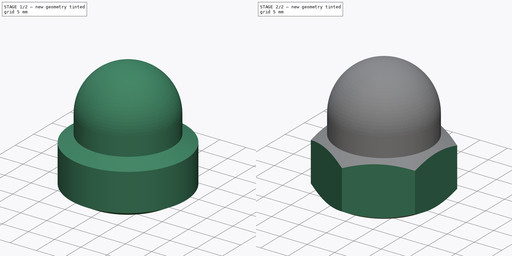
[diagram: build sequence overview — one tinted view per stage of 2, left to right]
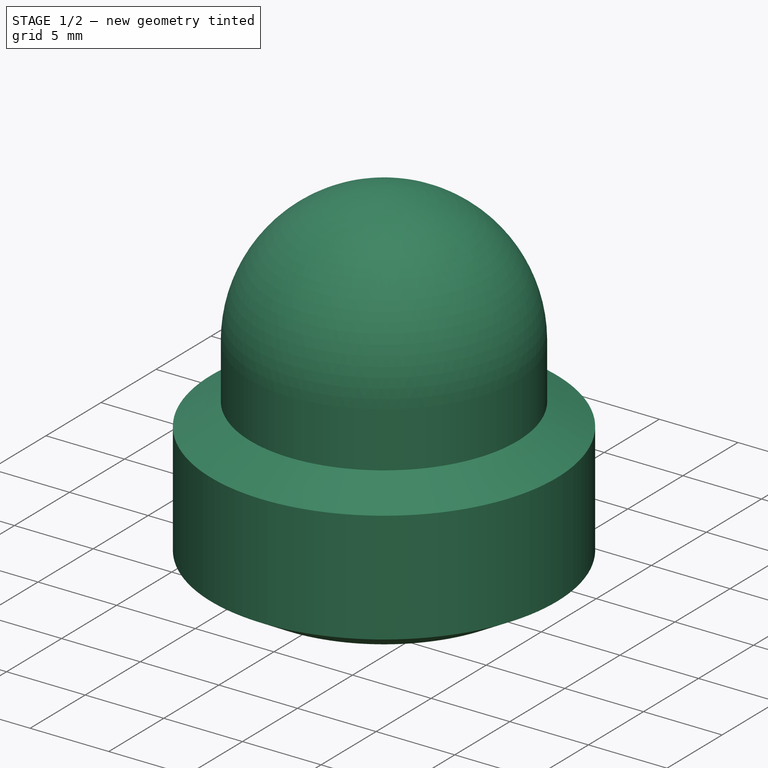
[diagram: stage 1 of 2 — iso view after this stage's code; geometry added in this stage tinted green]
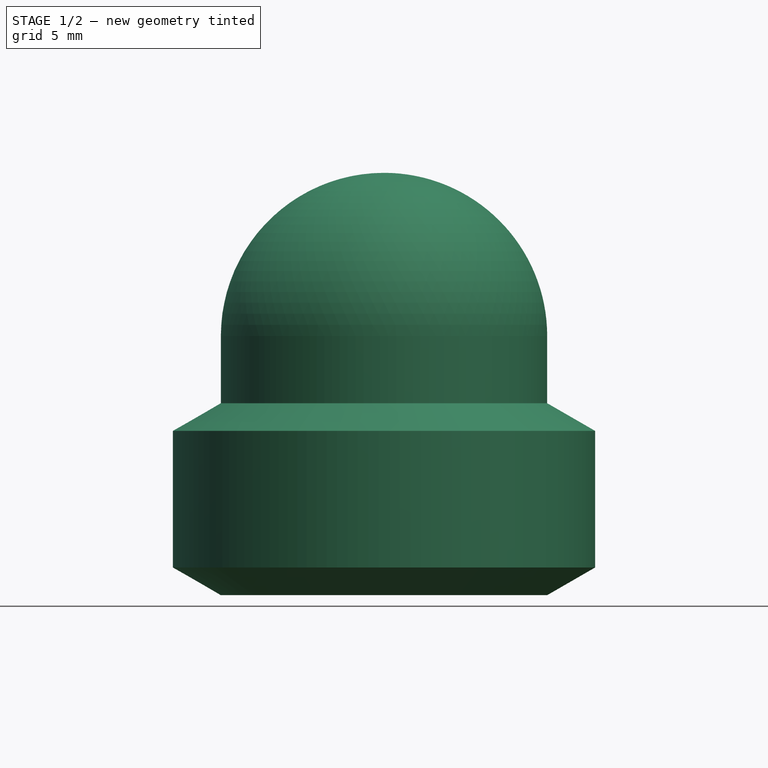
[diagram: stage 1 of 2 — front view after this stage's code; geometry added in this stage tinted green]
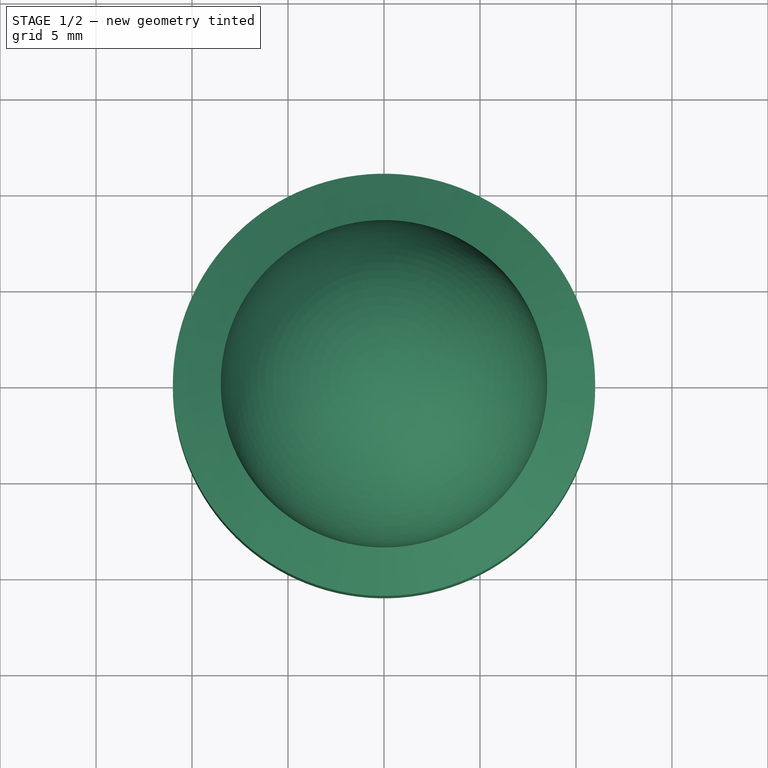
[diagram: stage 1 of 2 — top view after this stage's code; geometry added in this stage tinted green]
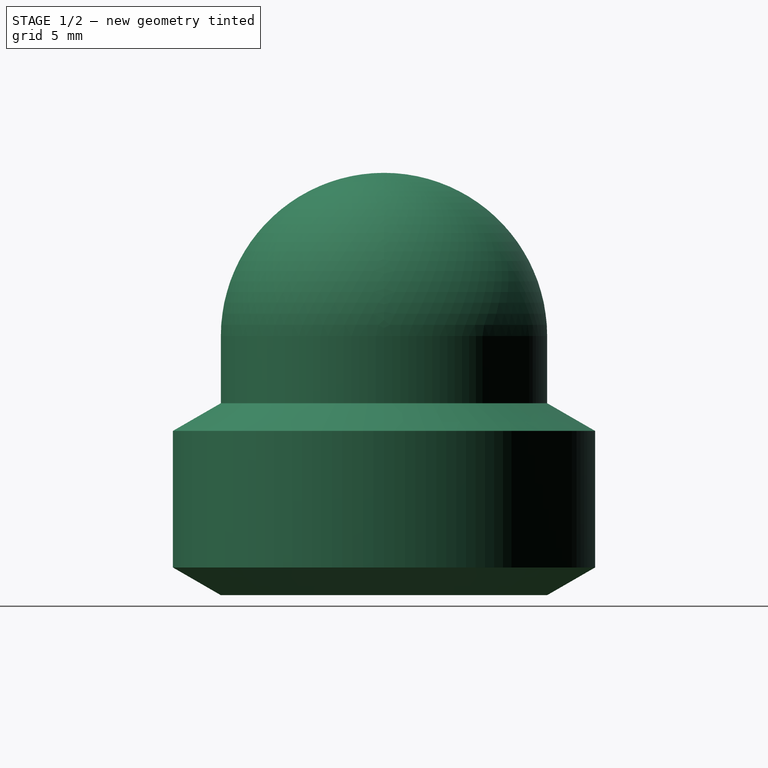
[diagram: stage 1 of 2 — right view after this stage's code; geometry added in this stage tinted green]
FCSTD DOCUMENT  (FreeCAD 0.14R3700 (Git))
Label: Hutmutter_DIN_1587-M12
License: CC-BY 3.0
LicenseURL: http://creativecommons.org/licenses/by/3.0/
objects: Sketcher::SketchObject×2, PartDesign::Revolution×1, PartDesign::Pocket×1, Part::Feature×1
note: 7 computed .brp shape members not serialized (recipe doc carries the construction recipe); baked Part::Feature solids carry a one-line shape summary decoded from their .brp

FEATURE [Sketcher::SketchObject] Sketch
  Placement = pos=(0,0,0) rot=(1,0,0;1.5708rad)
  sketch-geometry (9):
    g0: LineSegment StartX=5.1 StartY=0 StartZ=0 EndX=8.5 EndY=0 EndZ=0
    g1: LineSegment StartX=8.5 StartY=0 StartZ=0 EndX=11 EndY=1.44338 EndZ=0
    g2: LineSegment StartX=11 StartY=1.44338 StartZ=0 EndX=11 EndY=8.55662 EndZ=0
    g3: LineSegment StartX=11 StartY=8.55662 StartZ=0 EndX=8.5 EndY=10 EndZ=0
    g4: LineSegment StartX=8.5 StartY=10 StartZ=0 EndX=8.5 EndY=13.5 EndZ=0
    g5: ArcOfCircle CenterX=0 CenterY=13.5 CenterZ=0 NormalX=0 NormalY=0 NormalZ=1 Radius=8.5 StartAngle=0 EndAngle=1.5708
    g6: LineSegment StartX=0 StartY=22 StartZ=0 EndX=0 EndY=12.8 EndZ=0
    g7: LineSegment StartX=0 StartY=12.8 StartZ=0 EndX=5.1 EndY=12.8 EndZ=0
    g8: LineSegment StartX=5.1 StartY=12.8 StartZ=0 EndX=5.1 EndY=0 EndZ=0
  constraints (27):
    c: PointOnObject(g0,g-1)
    c: Horizontal(g0)
    c: Coincident(g0,g1)
    c: Coincident(g1,g2)
    c: Vertical(g2)
    c: Coincident(g2,g3)
    c: Coincident(g3,g4)
    c: Vertical(g4)
    c: Tangent(g4,g5)
    c: Coincident(g5,g6)
    c: Vertical(g6)
    c: Coincident(g6,g7)
    c: Horizontal(g7)
    c: Coincident(g7,g8)
    c: Vertical(g8)
    c: Coincident(g0,g8)
    c: PointOnObject(g6,g-2)
    c: PointOnObject(g5,g6)
    c: Equal(g1,g3)
    c: Radius(g5) = 8.5
    c: DistanceY(g8) = -12.8
    c: DistanceX(g-1,g0) = 5.1
    c: Angle(g1,g0) = 2.61799
    c: DistanceX(g-1,g1) = 11
    c: Angle(g3,g4) = 2.0944
    c: DistanceY(g3,g0) = -10
    c: DistanceY(g-1,g5) = 22
FEATURE [PartDesign::Revolution] Revolution
  Angle = 360
  Axis = (0,0,1)
  Base = (0,0,0)
  Placement = pos=(0,0,0) rot=(1,0,0;1.5708rad)
  ReferenceAxis = -> Sketch [V_Axis]
  Reversed = true
  Sketch = -> Sketch
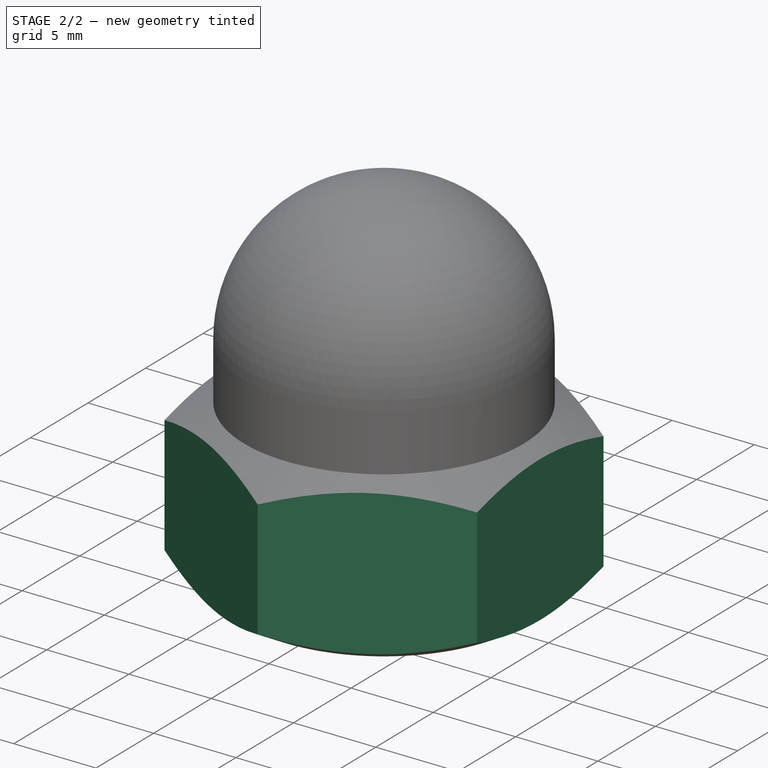
[diagram: stage 2 of 2 — iso view after this stage's code; geometry added in this stage tinted green]
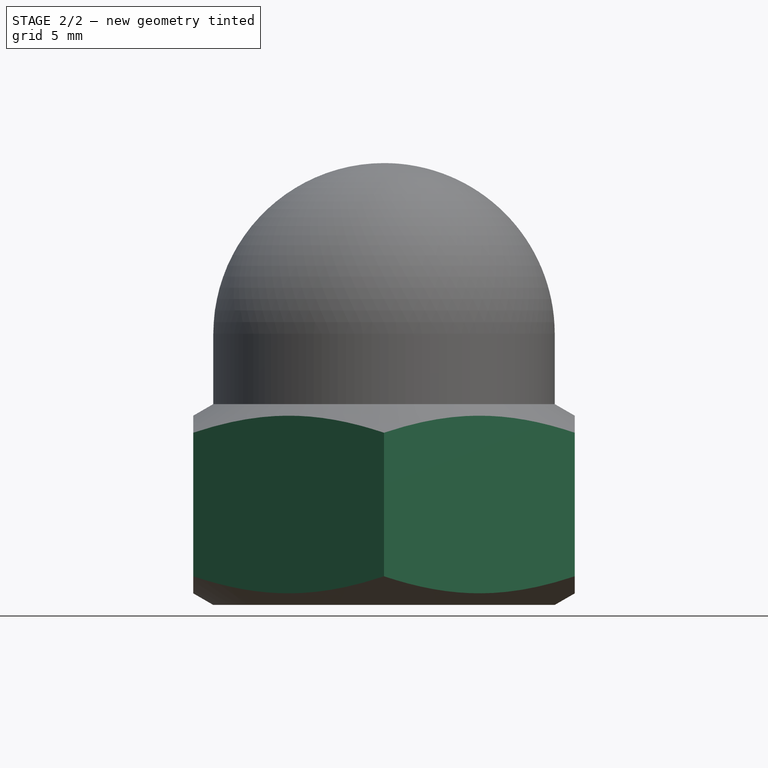
[diagram: stage 2 of 2 — front view after this stage's code; geometry added in this stage tinted green]
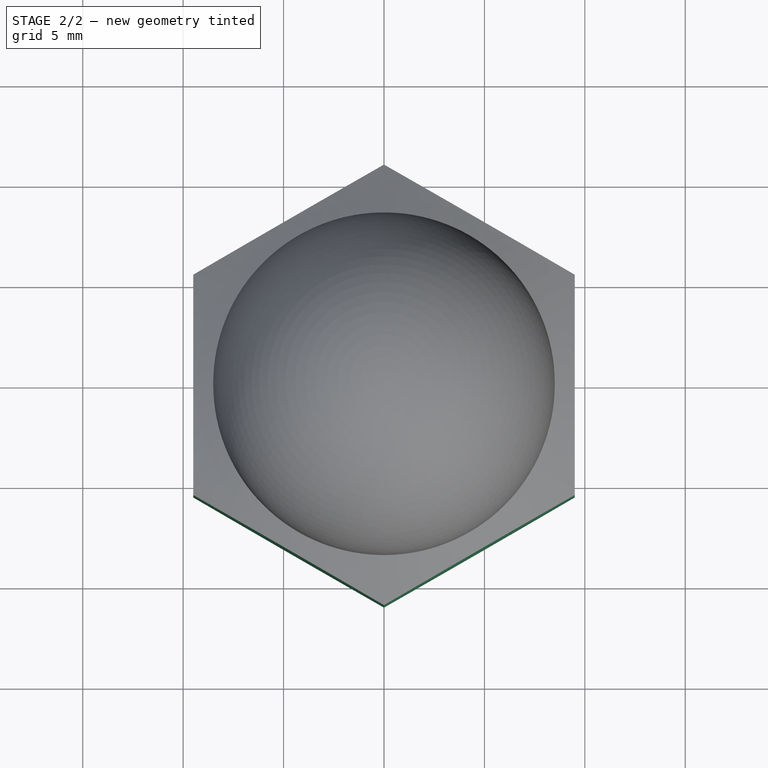
[diagram: stage 2 of 2 — top view after this stage's code; geometry added in this stage tinted green]
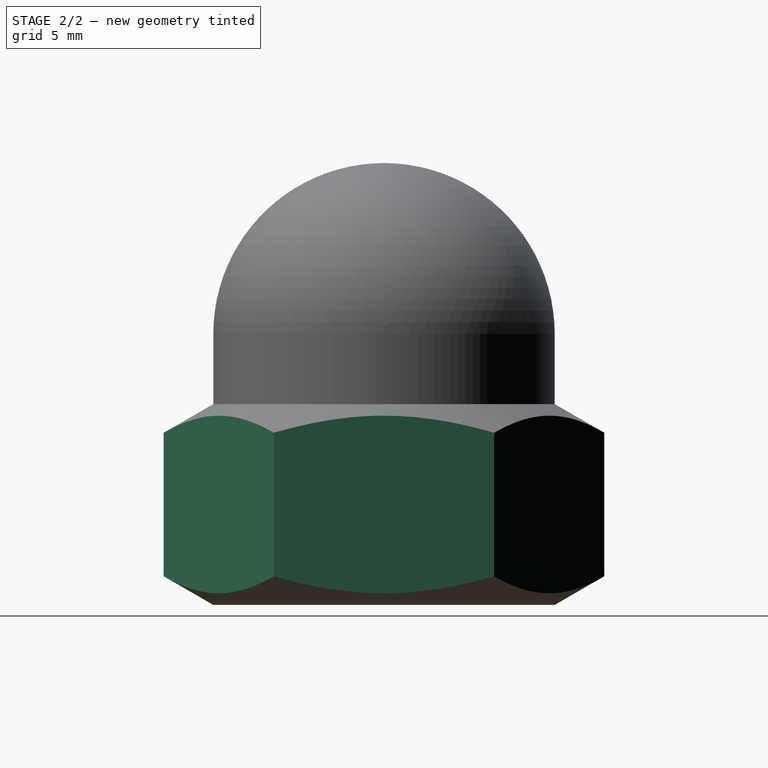
[diagram: stage 2 of 2 — right view after this stage's code; geometry added in this stage tinted green]
FEATURE [Sketcher::SketchObject] Sketch001
  Placement = pos=(0,0,0) rot=(1,0,0;3.14159rad)
  Support = -> Revolution [Face1]
  sketch-geometry (7):
    g0: LineSegment StartX=-9.5 StartY=5.48483 StartZ=0 EndX=-9.5 EndY=-5.48483 EndZ=0
    g1: LineSegment StartX=-9.5 StartY=-5.48483 StartZ=0 EndX=0 EndY=-10.9697 EndZ=0
    g2: LineSegment StartX=0 StartY=-10.9697 StartZ=0 EndX=9.5 EndY=-5.48483 EndZ=0
    g3: LineSegment StartX=9.5 StartY=-5.48483 StartZ=0 EndX=9.5 EndY=5.48483 EndZ=0
    g4: LineSegment StartX=9.5 StartY=5.48483 StartZ=0 EndX=0 EndY=10.9697 EndZ=0
    g5: LineSegment StartX=0 StartY=10.9697 StartZ=0 EndX=-9.5 EndY=5.48483 EndZ=0
    g6: Circle CenterX=0 CenterY=0 CenterZ=0 NormalX=0 NormalY=0 NormalZ=1 Radius=11
  constraints (20):
    c: Vertical(g0)
    c: Coincident(g0,g1)
    c: Coincident(g1,g2)
    c: Coincident(g2,g3)
    c: Vertical(g3)
    c: Coincident(g3,g4)
    c: PointOnObject(g4,g-2)
    c: Coincident(g4,g5)
    c: Coincident(g5,g0)
    c: PointOnObject(g1,g-2)
    c: Equal(g5,g0)
    c: Equal(g0,g1)
    c: Equal(g1,g2)
    c: Equal(g2,g3)
    c: Equal(g3,g4)
    c: Angle(g4,g3) = 2.0944
    c: Symmetric(g4,g1,g-1)
    c: DistanceX(g3,g0) = -19
    c: Coincident(g6,g-1)
    c: Radius(g6) = 11
FEATURE [PartDesign::Pocket] Pocket  label="Hutmutter DIN 1587 - M12 #"
  Length = 10
  Placement = pos=(0,0,0) rot=(1,0,0;1.5708rad)
  Sketch = -> Sketch001
  Type = 0
FEATURE [Part::Feature] Pocket001  label="Hutmutter DIN 1587 - M12 #001"
  Placement = pos=(0,0,0) rot=(1,0,0;1.5708rad)
  shape: bbox 21.94 x 21.94 x 22 mm, 13 faces (baked)
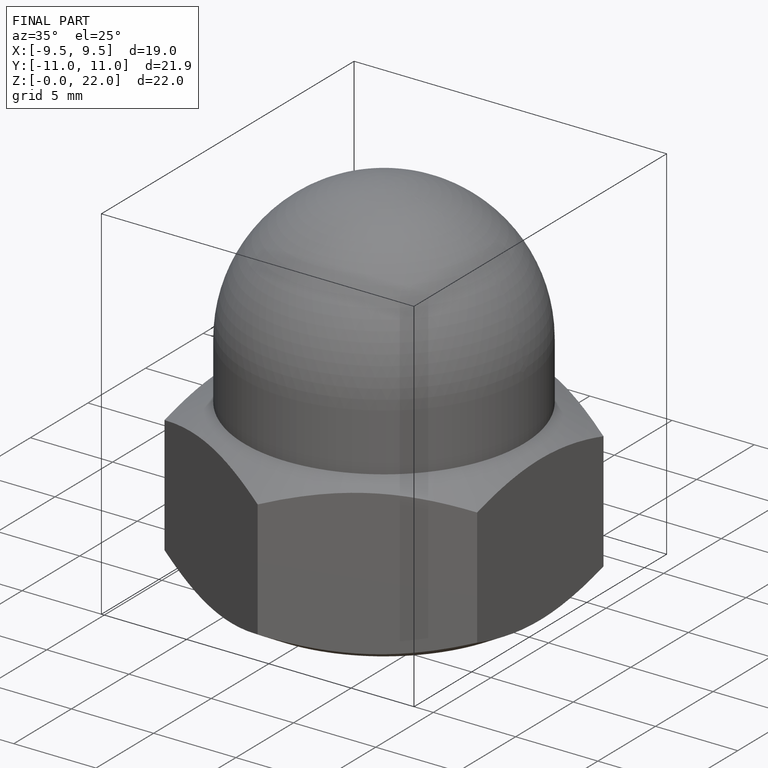
[diagram: finished part — iso view with bounding-box wireframe]
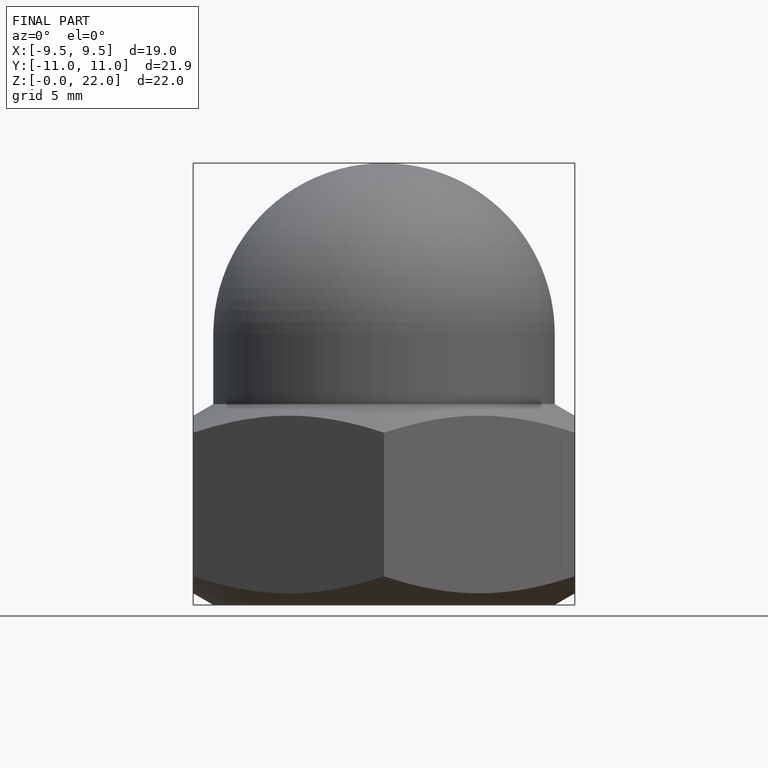
[diagram: finished part — front view with bounding-box wireframe]
